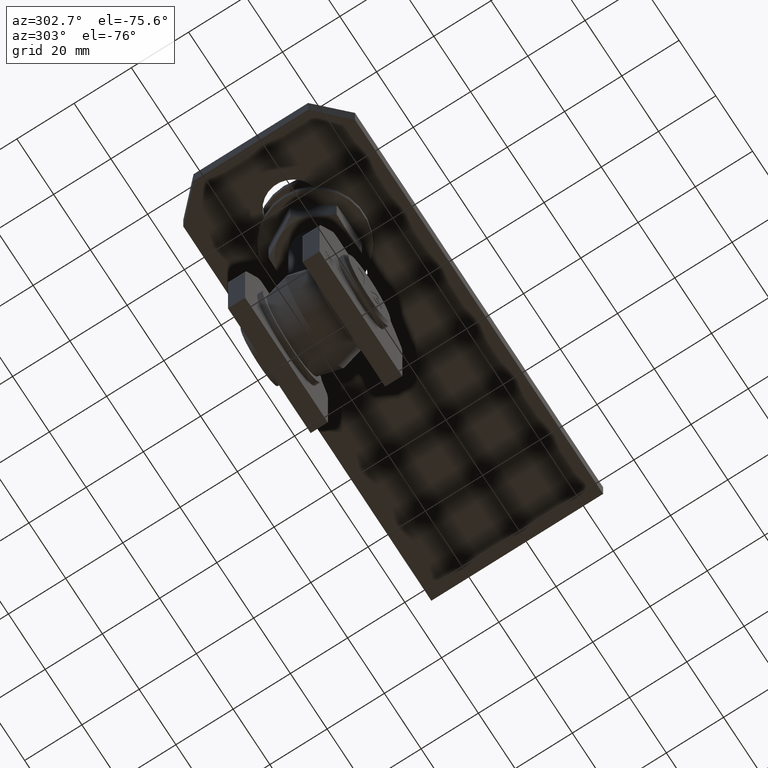
[diagram: clean part render]
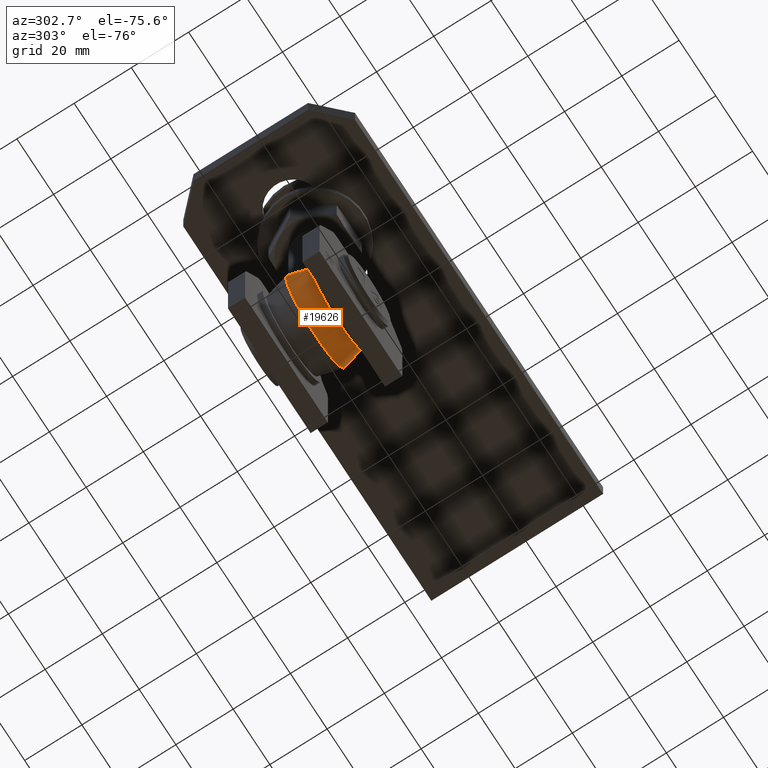
[diagram: same view with one face highlighted and labeled with its STEP entity id]
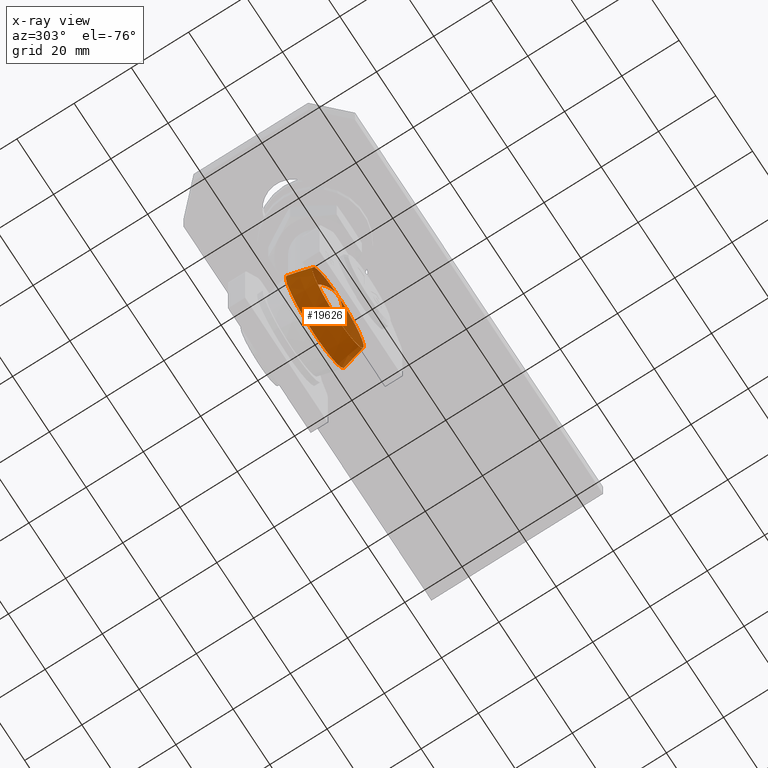
[diagram: x-ray of the same camera — body ghosted, the highlighted face saturated]
A machine part, auxiliary view. The second image highlights one B-rep face of the part: STEP entity #19626.
The next image is the same camera in x-ray: the body ghosted, the highlighted face saturated — about 16% of this face is hidden behind the body in this view.
In plain terms, the highlighted conical surface has half-angle 14.036 deg.
Its self-contained STEP definition (entity closure, byte-faithful):
#101 = CARTESIAN_POINT ( 'NONE',  ( -7.999999999999998224, -0.5111825544353230111, 13.70884076784687799 ) ) ;
#441 = DIRECTION ( 'NONE',  ( 0.000000000000000000, 0.000000000000000000, 1.000000000000000000 ) ) ;
#517 = CARTESIAN_POINT ( 'NONE',  ( 8.000000000000000000, -0.5111825544353248985, 13.70884076784687977 ) ) ;
#947 = CARTESIAN_POINT ( 'NONE',  ( 6.368982535474221329, -4.870115891597321500, 13.34287124068009689 ) ) ;
#1042 = CARTESIAN_POINT ( 'NONE',  ( -4.886099879437690419, -6.355995226199457449, 13.56429753302307262 ) ) ;
#1094 = CARTESIAN_POINT ( 'NONE',  ( 7.753463443119792409, -2.037656324389636175, 13.41058186830507104 ) ) ;
#1759 = CARTESIAN_POINT ( 'NONE',  ( -7.600958879076470609, -2.549711044828303574, 13.35139618400226169 ) ) ;
#1983 = EDGE_LOOP ( 'NONE', ( #19078, #14096, #17665, #20478 ) ) ;
#2038 = AXIS2_PLACEMENT_3D ( 'NONE', #22031, #16983, #8412 ) ;
#2609 = CARTESIAN_POINT ( 'NONE',  ( 7.600958879076469721, -2.549711044828304463, 13.35139618400226347 ) ) ;
#2677 = CARTESIAN_POINT ( 'NONE',  ( 5.284544543673084335E-16, -8.000000000000000000, 13.99999999999999645 ) ) ;
#2875 = FACE_OUTER_BOUND ( 'NONE', #1983, .T. ) ;
#3003 = CARTESIAN_POINT ( 'NONE',  ( -8.000000000000000000, 1.734723475976807094E-15, 13.85640646055101755 ) ) ;
#4373 = DIRECTION ( 'NONE',  ( -0.000000000000000000, 1.000000000000000000, -0.000000000000000000 ) ) ;
#4378 = VERTEX_POINT ( 'NONE', #3003 ) ;
#4422 = CARTESIAN_POINT ( 'NONE',  ( 2.581407963970473229, -7.576630926828365808, 13.86991060743746296 ) ) ;
#4806 = CARTESIAN_POINT ( 'NONE',  ( -6.368982535474220441, -4.870115891597316171, 13.34287124068009334 ) ) ;
#5155 = CARTESIAN_POINT ( 'NONE',  ( -2.831455103821341801, -7.486785863533163443, 13.84380270666376767 ) ) ;
#5264 = AXIS2_PLACEMENT_3D ( 'NONE', #7588, #4373, #14754 ) ;
#5827 = EDGE_CURVE ( 'NONE', #18868, #4378, #19020, .T. ) ;
#6076 = CARTESIAN_POINT ( 'NONE',  ( 5.284544543673084335E-16, -8.000000000000000000, 13.99999999999999645 ) ) ;
#7588 = CARTESIAN_POINT ( 'NONE',  ( 0.000000000000000000, -8.000000000000000000, -9.184850993605147944E-16 ) ) ;
#7767 = EDGE_CURVE ( 'NONE', #4378, #16693, #12608, .T. ) ;
#8023 = CARTESIAN_POINT ( 'NONE',  ( 4.018459475130499392, -6.937191852186679775, 13.69486846422644888 ) ) ;
#8412 = DIRECTION ( 'NONE',  ( 0.000000000000000000, 0.000000000000000000, 1.000000000000000000 ) ) ;
#8437 = CARTESIAN_POINT ( 'NONE',  ( -4.018459475130497616, -6.937191852186681551, 13.69486846422644355 ) ) ;
#9069 = CARTESIAN_POINT ( 'NONE',  ( 0.000000000000000000, 1.734723475976807094E-15, -9.184850993605147944E-16 ) ) ;
#9575 = CARTESIAN_POINT ( 'NONE',  ( 2.831455103821345354, -7.486785863533165220, 13.84380270666377122 ) ) ;
#9645 = CARTESIAN_POINT ( 'NONE',  ( 1.824989893006008668, -7.793443047850341365, 13.93498409404035421 ) ) ;
#9729 = CARTESIAN_POINT ( 'NONE',  ( 8.000000000000000000, 9.225429147980118360E-16, 13.85640646055101399 ) ) ;
#9860 = EDGE_CURVE ( 'NONE', #16693, #16693, #9887, .T. ) ;
#9887 = CIRCLE ( 'NONE', #5264, 13.99999999999999822 ) ;
#10264 = CARTESIAN_POINT ( 'NONE',  ( -7.202574841644563186, -3.521152928238088009, 13.29489863622799817 ) ) ;
#10311 = CARTESIAN_POINT ( 'NONE',  ( -7.753463443119795961, -2.037656324389635731, 13.41058186830506926 ) ) ;
#10328 = B_SPLINE_CURVE_WITH_KNOTS ( 'NONE', 3,
 ( #19552, #517, #14257, #1094, #2609, #21408, #14561, #947, #19830, #11302, #16501, #8023, #18129, #9575, #4422, #16588, #9645, #14866, #12963, #6076 ),
 .UNSPECIFIED., .F., .F.,
 ( 4, 2, 2, 2, 2, 2, 2, 2, 2, 4 ),
 ( 2.053501999351047098E-07, 0.001574777557771173727, 0.003149349765342412347, 0.004723921972913651401, 0.006298494180484891757, 0.007873066388056130377, 0.009447638595627371599, 0.01023492469941299048, 0.01102221080319860935, 0.01259678301076984884 ),
 .UNSPECIFIED. ) ;
#10392 = EDGE_CURVE ( 'NONE', #18868, #16693, #10328, .T. ) ;
#11302 = CARTESIAN_POINT ( 'NONE',  ( 5.296677424045368454, -6.018233466242274510, 13.49792589765025319 ) ) ;
#11958 = CARTESIAN_POINT ( 'NONE',  ( 5.284544543673084335E-16, -8.000000000000000000, 13.99999999999999645 ) ) ;
#12608 = B_SPLINE_CURVE_WITH_KNOTS ( 'NONE', 3,
 ( #20563, #101, #13854, #10311, #1759, #10264, #22139, #4806, #12847, #12981, #1042, #8437, #13626, #5155, #15295, #21980, #18503, #20402, #15135, #11958 ),
 .UNSPECIFIED., .F., .F.,
 ( 4, 2, 2, 2, 2, 2, 2, 2, 2, 4 ),
 ( 2.053501999353432554E-07, 0.001574777557771175028, 0.003149349765342414949, 0.004723921972913654871, 0.006298494180484894359, 0.007873066388056133846, 0.009447638595627373334, 0.01023492469941299221, 0.01102221080319861282, 0.01259678301076985231 ),
 .UNSPECIFIED. ) ;
#12847 = CARTESIAN_POINT ( 'NONE',  ( -6.035628685466997823, -5.276846800861127562, 13.38759495199432514 ) ) ;
#12963 = CARTESIAN_POINT ( 'NONE',  ( 0.5309884810981250203, -8.000000000000000000, 13.99999999999999112 ) ) ;
#12981 = CARTESIAN_POINT ( 'NONE',  ( -5.296677424045367566, -6.018233466242274510, 13.49792589765025497 ) ) ;
#13384 = AXIS2_PLACEMENT_3D ( 'NONE', #9069, #19334, #441 ) ;
#13626 = CARTESIAN_POINT ( 'NONE',  ( -3.559516607499976892, -7.183748590141200374, 13.75941298068741325 ) ) ;
#13854 = CARTESIAN_POINT ( 'NONE',  ( -7.951474976751575774, -1.020923285175577178, 13.58946104465633020 ) ) ;
#14096 = ORIENTED_EDGE ( 'NONE', *, *, #10392, .T. ) ;
#14257 = CARTESIAN_POINT ( 'NONE',  ( 7.951474976751573998, -1.020923285175577400, 13.58946104465633020 ) ) ;
#14561 = CARTESIAN_POINT ( 'NONE',  ( 6.956787808347913327, -3.985607949157346841, 13.29608057030755575 ) ) ;
#14754 = DIRECTION ( 'NONE',  ( 0.000000000000000000, 0.000000000000000000, 1.000000000000000000 ) ) ;
#14866 = CARTESIAN_POINT ( 'NONE',  ( 1.055941467796960076, -7.947223302212570673, 13.98276856443154159 ) ) ;
#14994 = CONICAL_SURFACE ( 'NONE', #2038, 13.99999999999999822, 0.2449786631268643100 ) ;
#15135 = CARTESIAN_POINT ( 'NONE',  ( -0.5309884810981240211, -8.000000000000001776, 13.99999999999999822 ) ) ;
#15295 = CARTESIAN_POINT ( 'NONE',  ( -2.581407963970469677, -7.576630926828368473, 13.86991060743746296 ) ) ;
#16501 = CARTESIAN_POINT ( 'NONE',  ( 4.886099879437692195, -6.355995226199455672, 13.56429753302307439 ) ) ;
#16588 = CARTESIAN_POINT ( 'NONE',  ( 2.078817070181092852, -7.729652182766435509, 13.91541675777440901 ) ) ;
#16693 = VERTEX_POINT ( 'NONE', #2677 ) ;
#16983 = DIRECTION ( 'NONE',  ( -0.000000000000000000, 1.000000000000000000, -0.000000000000000000 ) ) ;
#17665 = ORIENTED_EDGE ( 'NONE', *, *, #9860, .T. ) ;
#18129 = CARTESIAN_POINT ( 'NONE',  ( 3.559516607499980001, -7.183748590141198598, 13.75941298068741503 ) ) ;
#18503 = CARTESIAN_POINT ( 'NONE',  ( -1.824989893006006447, -7.793443047850341365, 13.93498409404035598 ) ) ;
#18868 = VERTEX_POINT ( 'NONE', #9729 ) ;
#19020 = CIRCLE ( 'NONE', #13384, 16.00000000000000000 ) ;
#19078 = ORIENTED_EDGE ( 'NONE', *, *, #5827, .F. ) ;
#19334 = DIRECTION ( 'NONE',  ( -0.000000000000000000, 1.000000000000000000, -0.000000000000000000 ) ) ;
#19552 = CARTESIAN_POINT ( 'NONE',  ( 8.000000000000000000, 9.225429147980118360E-16, 13.85640646055101399 ) ) ;
#19626 = ADVANCED_FACE ( 'NONE', ( #2875 ), #14994, .T. ) ;
#19830 = CARTESIAN_POINT ( 'NONE',  ( 6.035628685466999599, -5.276846800861127562, 13.38759495199432514 ) ) ;
#20402 = CARTESIAN_POINT ( 'NONE',  ( -1.055941467796958744, -7.947223302212568896, 13.98276856443154159 ) ) ;
#20478 = ORIENTED_EDGE ( 'NONE', *, *, #7767, .F. ) ;
#20563 = CARTESIAN_POINT ( 'NONE',  ( -8.000000000000000000, 1.734723475976807094E-15, 13.85640646055101755 ) ) ;
#21408 = CARTESIAN_POINT ( 'NONE',  ( 7.202574841644561410, -3.521152928238089341, 13.29489863622800527 ) ) ;
#21980 = CARTESIAN_POINT ( 'NONE',  ( -2.078817070181090187, -7.729652182766438173, 13.91541675777441078 ) ) ;
#22031 = CARTESIAN_POINT ( 'NONE',  ( 0.000000000000000000, -8.000000000000000000, -9.184850993605147944E-16 ) ) ;
#22139 = CARTESIAN_POINT ( 'NONE',  ( -6.956787808347914215, -3.985607949157345065, 13.29608057030755397 ) ) ;